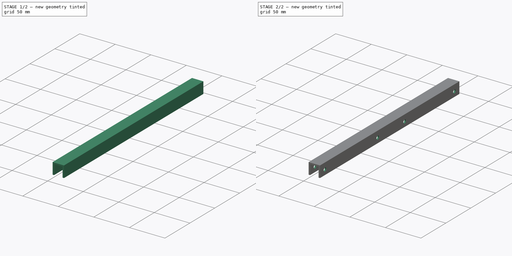
[diagram: build sequence overview — one tinted view per stage of 2, left to right]
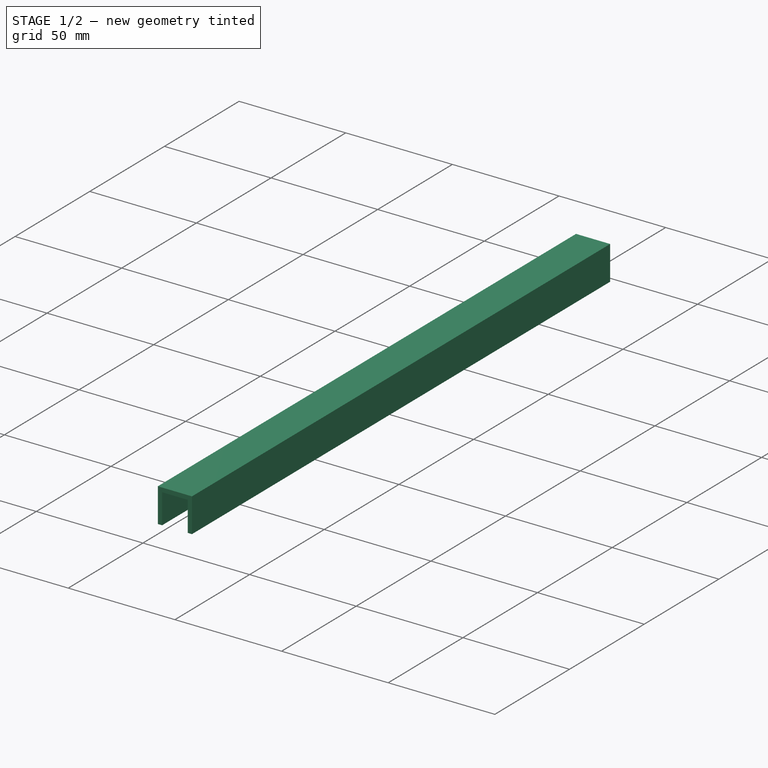
[diagram: stage 1 of 2 — iso view after this stage's code; geometry added in this stage tinted green]
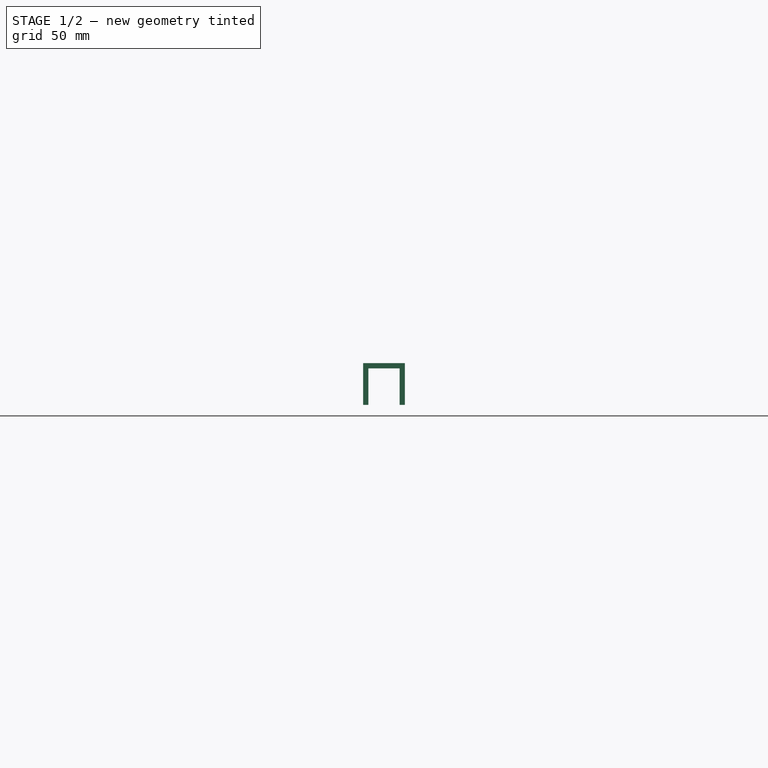
[diagram: stage 1 of 2 — front view after this stage's code; geometry added in this stage tinted green]
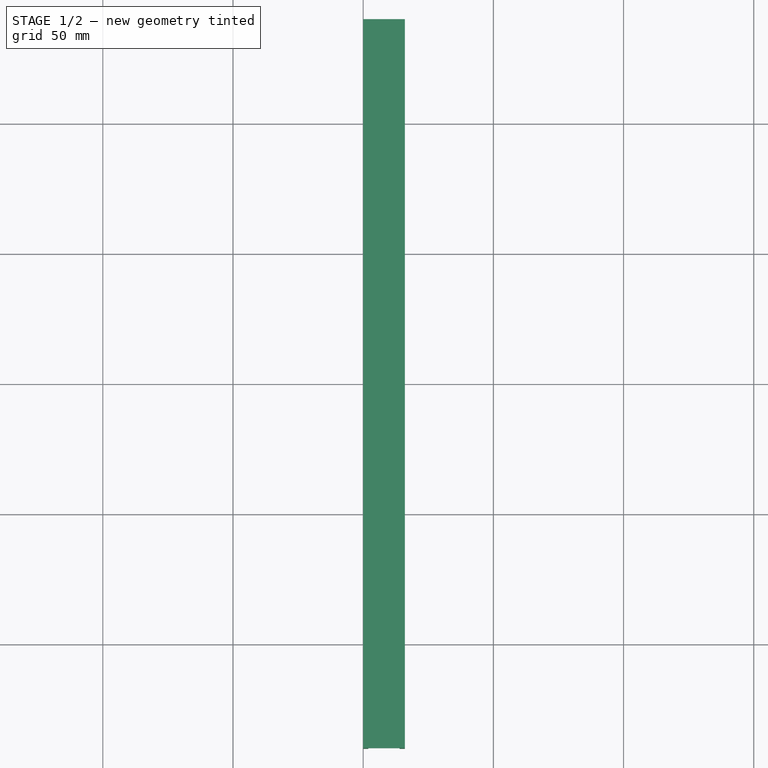
[diagram: stage 1 of 2 — top view after this stage's code; geometry added in this stage tinted green]
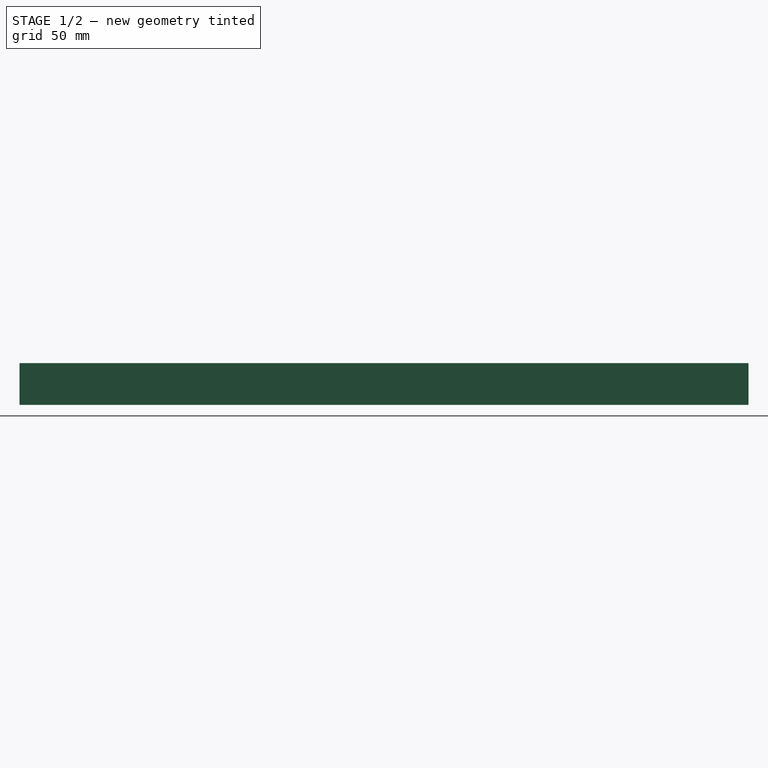
[diagram: stage 1 of 2 — right view after this stage's code; geometry added in this stage tinted green]
FCSTD DOCUMENT  (FreeCAD 0.15R4671 (Git))
Label: SuspensionSupport
License: All rights reserved
LicenseURL: http://en.wikipedia.org/wiki/All_rights_reserved
objects: Drawing::FeatureViewPart×4, Sketcher::SketchObject×2, PartDesign::Pad×1, PartDesign::Pocket×1, Drawing::FeaturePage×1
note: 6 computed .brp shape members not serialized (recipe doc carries the construction recipe); baked Part::Feature solids carry a one-line shape summary decoded from their .brp

FEATURE [Sketcher::SketchObject] Sketch
  Placement = pos=(0,0,0) rot=(1,0,0;1.5708rad)
  sketch-geometry (8):
    g0: LineSegment StartX=0 StartY=0 StartZ=0 EndX=0 EndY=16 EndZ=0
    g1: LineSegment StartX=0 StartY=16 StartZ=0 EndX=16 EndY=16 EndZ=0
    g2: LineSegment StartX=16 StartY=16 StartZ=0 EndX=16 EndY=0 EndZ=0
    g3: LineSegment StartX=16 StartY=0 StartZ=0 EndX=14 EndY=0 EndZ=0
    g4: LineSegment StartX=14 StartY=0 StartZ=0 EndX=14 EndY=14 EndZ=0
    g5: LineSegment StartX=14 StartY=14 StartZ=0 EndX=2 EndY=14 EndZ=0
    g6: LineSegment StartX=2 StartY=14 StartZ=0 EndX=2 EndY=0 EndZ=0
    g7: LineSegment StartX=2 StartY=0 StartZ=0 EndX=0 EndY=0 EndZ=0
  constraints (23):
    c: Coincident(g-1,g0)
    c: PointOnObject(g0,g-2)
    c: Coincident(g0,g1)
    c: Horizontal(g1)
    c: Coincident(g1,g2)
    c: Vertical(g2)
    c: Coincident(g2,g3)
    c: Coincident(g3,g4)
    c: Vertical(g4)
    c: Coincident(g4,g5)
    c: Horizontal(g5)
    c: Coincident(g5,g6)
    c: Vertical(g6)
    c: Coincident(g6,g7)
    c: Coincident(g7,g0)
    c: Horizontal(g7)
    c: DistanceX(g7) = -2
    c: DistanceX(g3) = -2
    c: DistanceY(g4,g1) = 2
    c: DistanceX(g1) = 16
    c: DistanceY(g0) = 16
    c: DistanceY(g1,g2) = -16
    c: Horizontal(g3)
FEATURE [PartDesign::Pad] Pad
  Length = 280
  Length2 = 100
  Midplane = true
  Placement = pos=(0,0,0) rot=(1,0,0;1.5708rad)
  Sketch = -> Sketch
  Type = 0
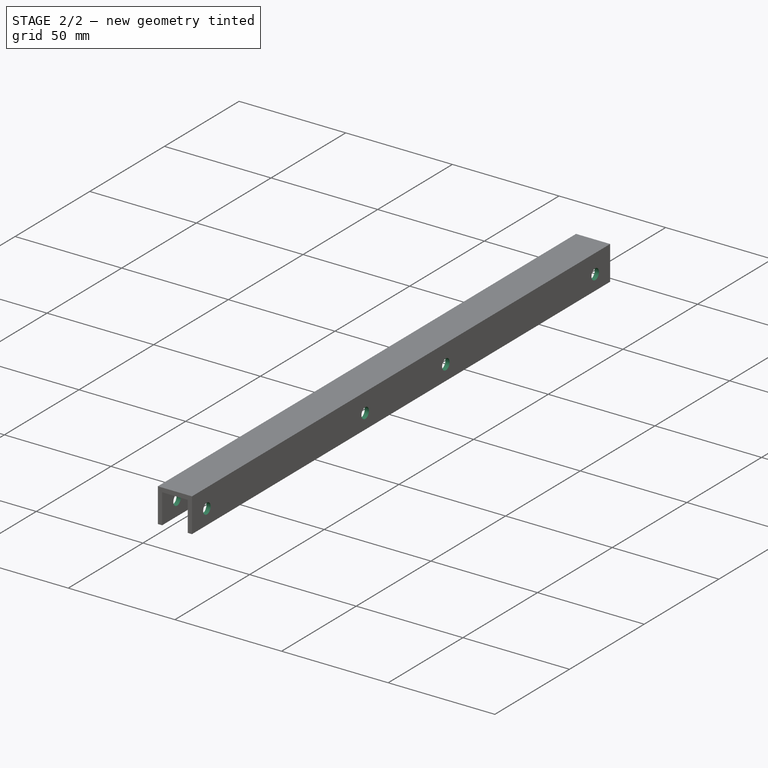
[diagram: stage 2 of 2 — iso view after this stage's code; geometry added in this stage tinted green]
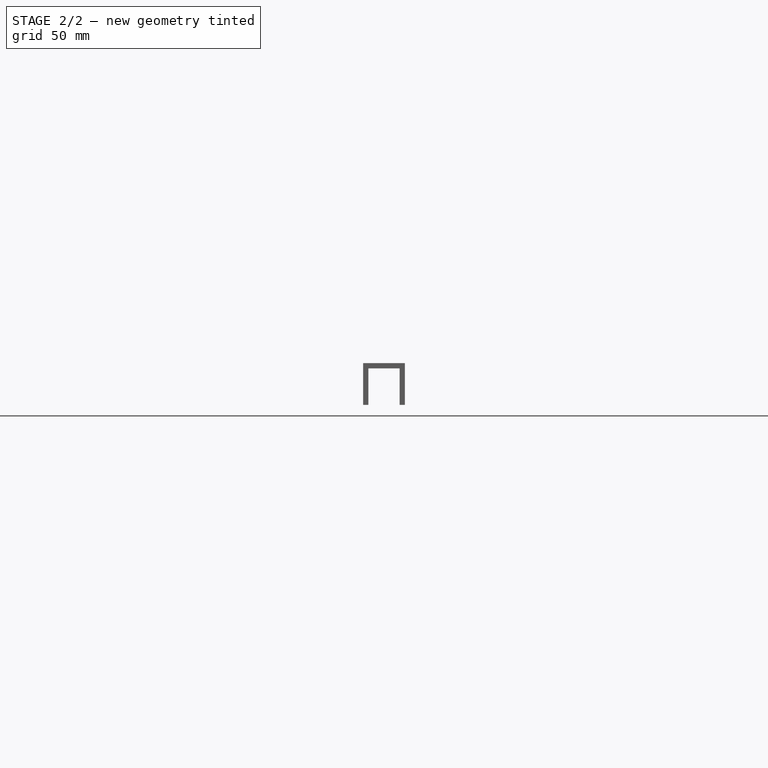
[diagram: stage 2 of 2 — front view after this stage's code; geometry added in this stage tinted green]
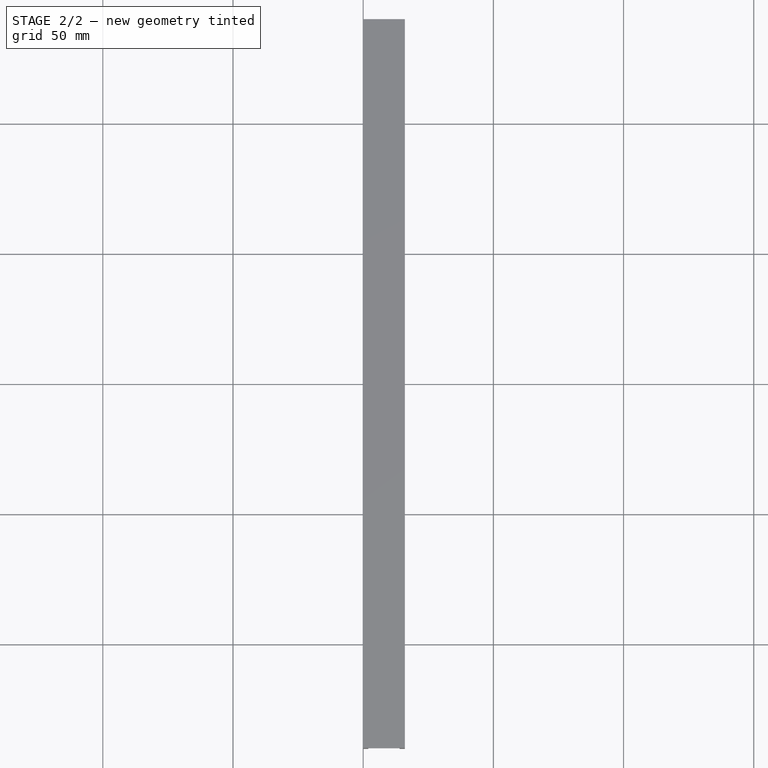
[diagram: stage 2 of 2 — top view after this stage's code; geometry added in this stage tinted green]
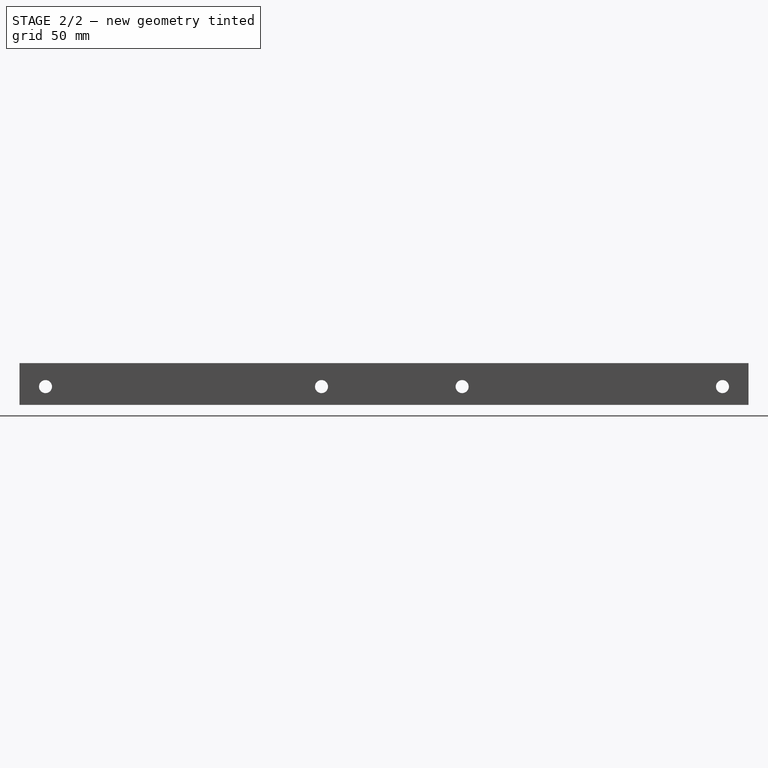
[diagram: stage 2 of 2 — right view after this stage's code; geometry added in this stage tinted green]
FEATURE [Sketcher::SketchObject] Sketch001
  Placement = pos=(16,0,0) rot=(0.707107,0,0.707107;3.14159rad)
  Support = -> Pad [Face3]
  sketch-geometry (4):
    g0: Circle CenterX=7 CenterY=130 CenterZ=0 NormalX=0 NormalY=0 NormalZ=1 Radius=2.5
    g1: Circle CenterX=7 CenterY=-130 CenterZ=0 NormalX=0 NormalY=0 NormalZ=1 Radius=2.5
    g2: Circle CenterX=7 CenterY=24 CenterZ=0 NormalX=0 NormalY=0 NormalZ=1 Radius=2.5
    g3: Circle CenterX=7 CenterY=-30 CenterZ=0 NormalX=0 NormalY=0 NormalZ=1 Radius=2.5
  constraints (11):
    c: Symmetric(g1,g0,g-1)
    c: DistanceY(g-1,g0) = 130
    c: Equal(g0,g1)
    c: Radius(g0) = 2.5
    c: DistanceX(g-1,g0) = 7
    c: Equal(g3,g2)
    c: Equal(g2,g1)
    c: DistanceY(g2,g0) = 106
    c: DistanceY(g3,g1) = -100
    c: DistanceX(g-1,g3) = 7
    c: DistanceX(g-1,g2) = 7
FEATURE [PartDesign::Pocket] Pocket  label="SuspensionSupportCorner"
  Length = 5
  Placement = pos=(0,0,0) rot=(1,0,0;1.5708rad)
  Sketch = -> Sketch001
  Type = 1
FEATURE [Drawing::FeatureViewPart] Ortho  label="Ortho_0_0"
  Direction = (1,0,0)
  HiddenWidth = 0.15
  LineWidth = 0.35
  Rotation = -90
  Scale = 0.75
  ShowHiddenLines = true
  ShowSmoothLines = false
  Source = -> Pocket
  Tolerance = 0.05
  ViewResult = <g id="Ortho_0_0"\n   transform="rotate(-90,160,120) translate(160,120) scale(0.75,0.75)"\n  >\n<g   stroke="rgb(0, 0, 0)"\n   stroke-width="0.2"\n   stroke-linecap="butt"\n   stroke-linejoin="miter"\n   stroke-dasharray="0.2,0.1"\n   fill="none"\n   transform="scale(1,-1)"\n  >\n<path id= "1" d=" M -1.24345e-13 -140 L 1.24345e-13 140 " />\n<path id= "2" d=" M -1.24345e-13 -140 L 16 -140 " />\n<path id= "3" d=" M 1.24345e-13 140 L 16 140 " />\n<path id= "4" d=" M 16 -140 L 16 140 " />\n<circle cx ="7" cy ="-130" r ="2.5" /><circle cx ="7" cy ="24" r ="2.5" /><circle cx ="7" cy ="-30" r ="2.5" /><circle cx ="7" cy ="130" r ="2.5" /><path id= "9" d=" M -1.24345e-13 -140 L 14 -140 " />\n<path id= "10" d=" M 1.24345e-13 140 L 14 140 " />\n<circle cx ="7" cy ="24" r ="2.5" /><circle cx ="7" cy ="130" r ="2.5" /><path id= "13" d=" M 14 -140 L 14 140 " />\n<path id= "14" d=" M -1.24345e-13 -140 L 1.24345e-13 140 " />\n<path id= "15" d=" M 14 -140 L 14 140 " />\n<circle cx ="7" cy ="-130" r ="2.5" /><circle cx ="7" cy ="24" r ="2.5" /><circle cx ="7" cy ="-30" r ="2.5" /><circle cx ="7" cy ="130" r ="2.5" /></g>\n<g   stroke="rgb(0, 0, 0)"\n   stroke-width="0.466667"\n   stroke-linecap="butt"\n   stroke-linejoin="miter"\n   fill="none"\n   transform="scale(1,-1)"\n  >\n<path id= "1" d=" M -1.24345e-13 -140 L 1.24345e-13 140 " />\n<path id= "2" d=" M 16 -140 L -1.24345e-13 -140 " />\n<path id= "3" d=" M 14 -140 L -1.24345e-13 -140 " />\n<path id= "4" d=" M 16 140 L 1.24345e-13 140 " />\n<path id= "5" d=" M 14 140 L 1.24345e-13 140 " />\n<path id= "6" d=" M 16 -140 L 16 140 " />\n<circle cx ="7" cy ="-130" r ="2.5" /><circle cx ="7" cy ="-30" r ="2.5" /><path id= "9" d=" M -1.24345e-13 -140 L 1.24345e-13 140 " />\n<circle cx ="7" cy ="-130" r ="2.5" /><circle cx ="7" cy ="24" r ="2.5" /><circle cx ="7" cy ="-30" r ="2.5" /><circle cx ="7" cy ="130" r ="2.5" /></g>\n</g>
  Visible = true
  X = 160
  Y = 120
FEATURE [Drawing::FeatureViewPart] Ortho003  label="Ortho_0_-1"
  Direction = (0,0,-1)
  HiddenWidth = 0.15
  LineWidth = 0.35
  Rotation = 90
  Scale = 0.75
  ShowHiddenLines = true
  ShowSmoothLines = false
  Source = -> Pocket
  Tolerance = 0.05
  ViewResult = <blob: 13973 chars omitted>
  Visible = true
  X = 160
  Y = 150.5
FEATURE [Drawing::FeatureViewPart] Ortho004  label="Ortho_-1_0"
  Direction = (0,-1,0)
  HiddenWidth = 0.15
  LineWidth = 0.35
  Rotation = 90
  Scale = 0.75
  ShowHiddenLines = true
  ShowSmoothLines = false
  Source = -> Pocket
  Tolerance = 0.05
  ViewResult = <blob: 9704 chars omitted>
  Visible = true
  X = 35
  Y = 120
FEATURE [Drawing::FeatureViewPart] Ortho005  label="Ortho_-1_1"
  Direction = (0.57735,-0.57735,0.57735)
  HiddenWidth = 0.15
  LineWidth = 0.35
  Rotation = 60
  Scale = 0.5
  ShowHiddenLines = true
  ShowSmoothLines = false
  Source = -> Pocket
  Tolerance = 0.05
  ViewResult = <blob: 7174 chars omitted>
  Visible = true
  X = 150
  Y = 60
FEATURE [Drawing::FeaturePage] Page
  EditableTexts = Siqueira | Siqueira | Pindí | Drawing | Suspension Support (corner) | 0003 | 2015-06-21
  Group = -> [Ortho,Ortho003,Ortho004,Ortho005]
  Template = <path>
note: 1 file-system path scrubbed to <path> (originals preserved in the JSON sidecar)
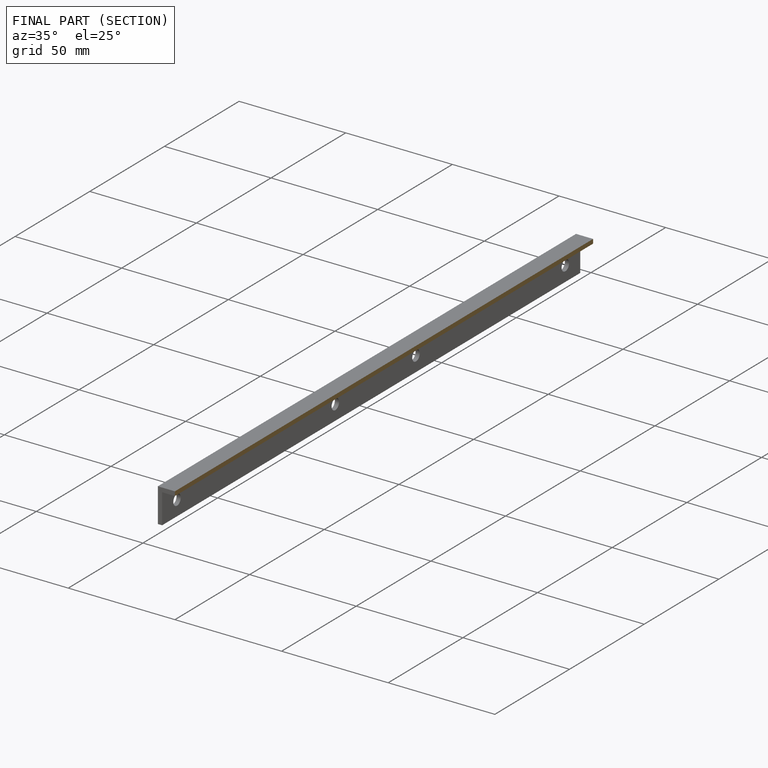
[diagram: finished part — half-section view (interior)]
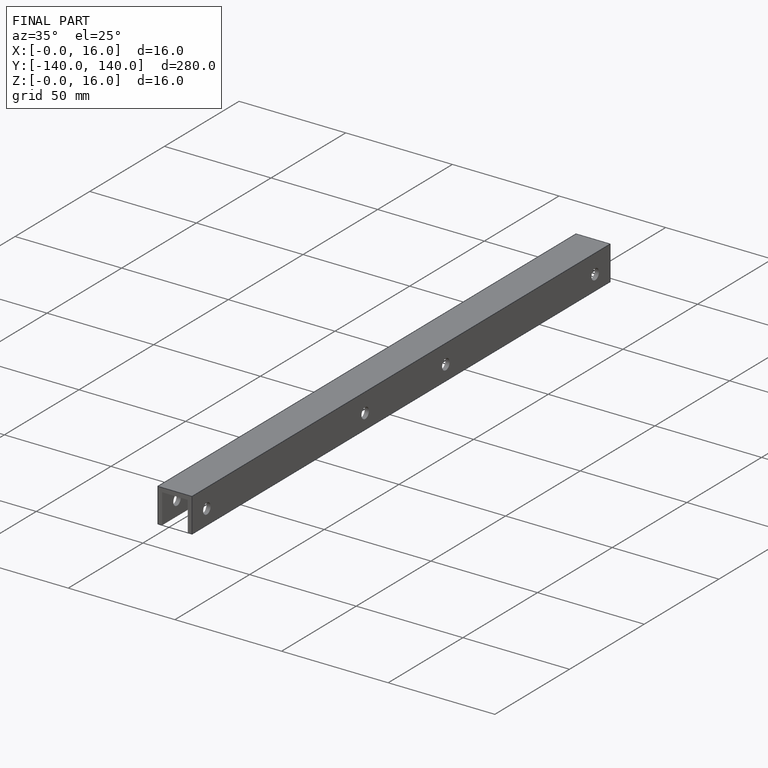
[diagram: finished part — iso view with bounding-box wireframe]
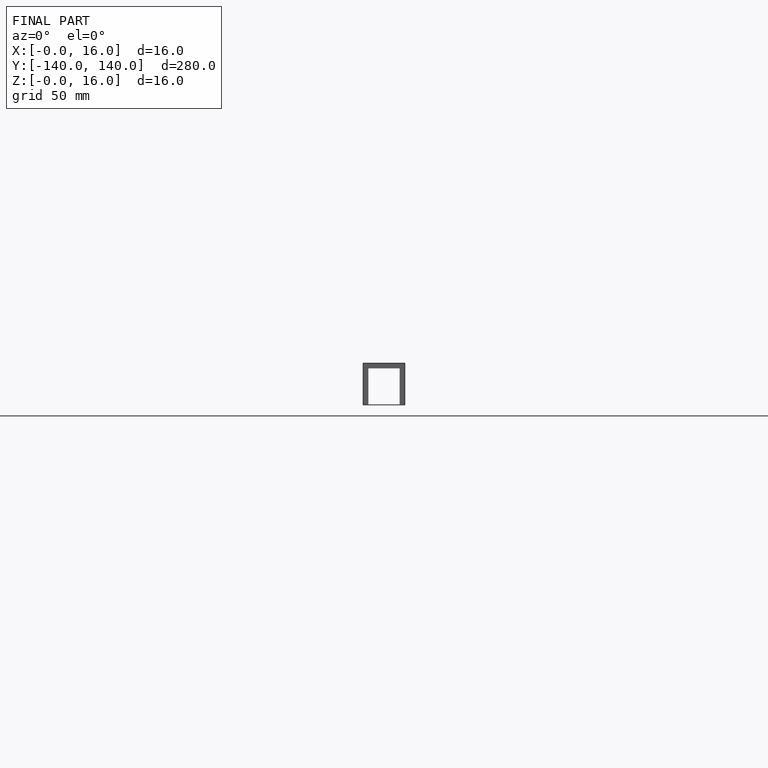
[diagram: finished part — front view with bounding-box wireframe]
